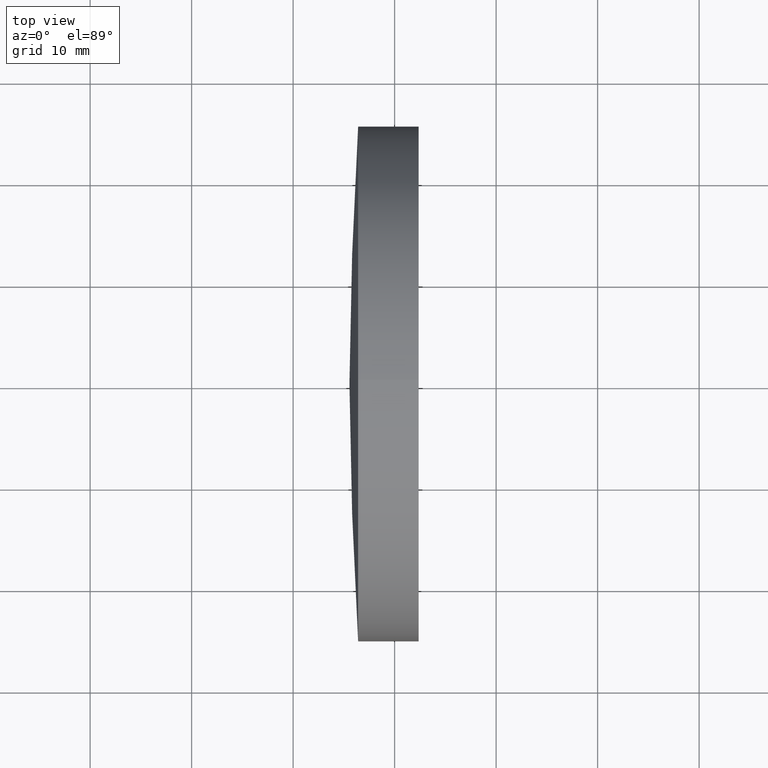
[diagram: clean part render]
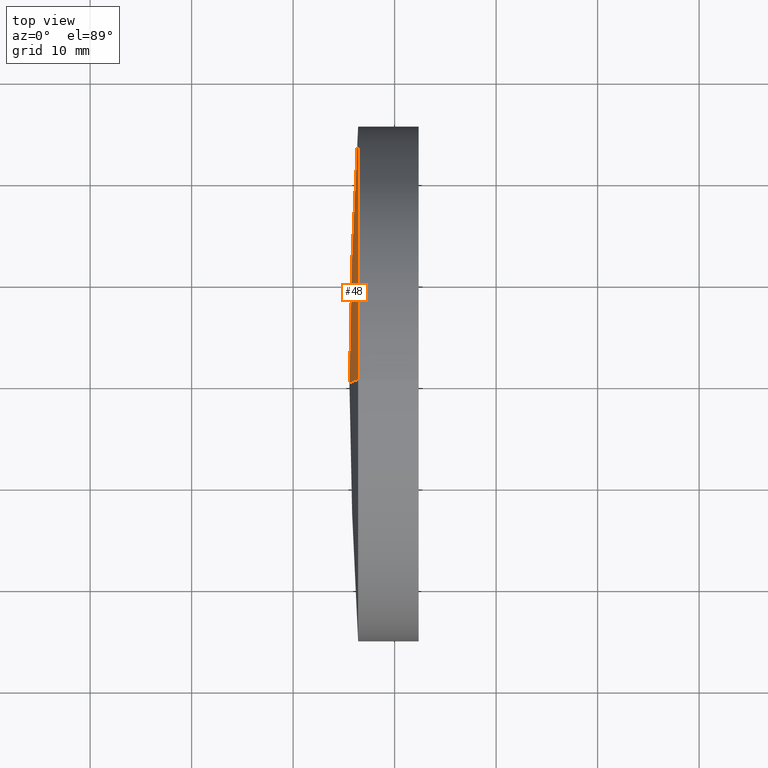
[diagram: same view with one face highlighted and labeled with its STEP entity id]
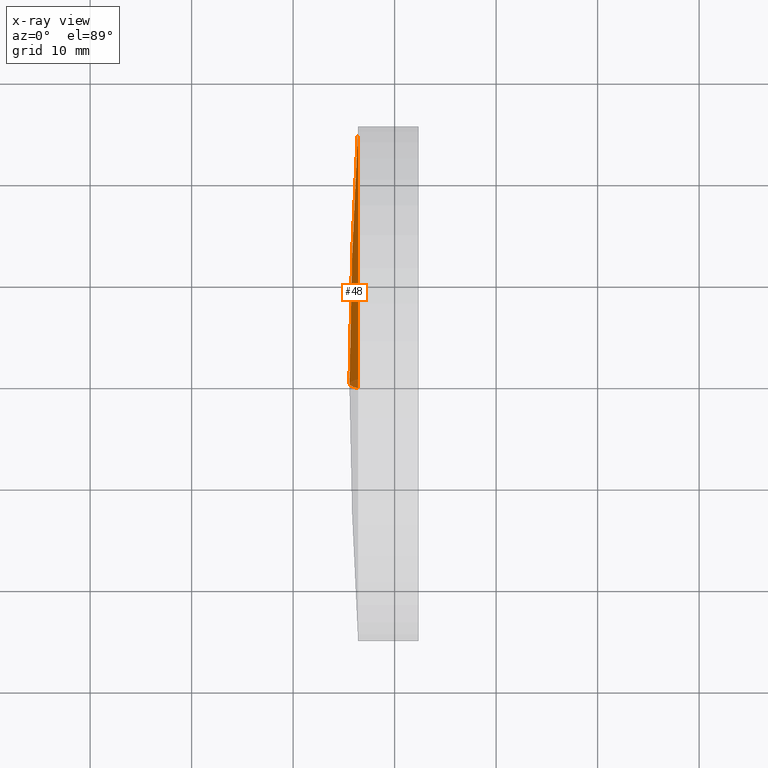
[diagram: x-ray of the same camera — body ghosted, the highlighted face saturated]
A machine part, top view. The second image highlights one B-rep face of the part: STEP entity #48.
The next image is the same camera in x-ray: the body ghosted, the highlighted face saturated — about 4% of this face is hidden behind the body in this view.
In plain terms, the highlighted spherical surface has radius 376.8 mm.
Its self-contained STEP definition (entity closure, byte-faithful):
#16 = AXIS2_PLACEMENT_3D ( 'NONE', #240, #159, #233 ) ;
#18 = FACE_OUTER_BOUND ( 'NONE', #207, .T. ) ;
#33 = CIRCLE ( 'NONE', #201, 376.8000000000000100 ) ;
#48 = ADVANCED_FACE ( 'NONE', ( #18 ), #108, .T. ) ;
#62 = AXIS2_PLACEMENT_3D ( 'NONE', #188, #77, #303 ) ;
#77 = DIRECTION ( 'NONE',  ( 0.0000000000000000000, -1.000000000000000000, 0.0000000000000000000 ) ) ;
#84 = VERTEX_POINT ( 'NONE', #263 ) ;
#85 = DIRECTION ( 'NONE',  ( 0.0000000000000000000, 0.0000000000000000000, 1.000000000000000000 ) ) ;
#87 = AXIS2_PLACEMENT_3D ( 'NONE', #319, #322, #85 ) ;
#94 = CARTESIAN_POINT ( 'NONE',  ( -33.59384532777775700, 3.110602869834250000E-015, -25.39999999999978500 ) ) ;
#97 = CARTESIAN_POINT ( 'NONE',  ( 342.3490758717043700, 0.0000000000000000000, -7.663786165743663600E-015 ) ) ;
#108 = SPHERICAL_SURFACE ( 'NONE', #16, 376.8000000000000100 ) ;
#118 = CARTESIAN_POINT ( 'NONE',  ( -33.59384532777775700, 0.0000000000000000000, 25.39999999999977800 ) ) ;
#158 = ORIENTED_EDGE ( 'NONE', *, *, #247, .F. ) ;
#159 = DIRECTION ( 'NONE',  ( 0.0000000000000000000, 1.000000000000000000, 0.0000000000000000000 ) ) ;
#173 = CIRCLE ( 'NONE', #62, 376.8000000000000100 ) ;
#174 = ORIENTED_EDGE ( 'NONE', *, *, #338, .T. ) ;
#188 = CARTESIAN_POINT ( 'NONE',  ( 342.3490758717043700, 0.0000000000000000000, -7.663786165743663600E-015 ) ) ;
#201 = AXIS2_PLACEMENT_3D ( 'NONE', #97, #259, #272 ) ;
#207 = EDGE_LOOP ( 'NONE', ( #174, #223, #158 ) ) ;
#223 = ORIENTED_EDGE ( 'NONE', *, *, #298, .T. ) ;
#227 = VERTEX_POINT ( 'NONE', #118 ) ;
#233 = DIRECTION ( 'NONE',  ( 0.0000000000000000000, 0.0000000000000000000, 1.000000000000000000 ) ) ;
#240 = CARTESIAN_POINT ( 'NONE',  ( 342.3490758717043700, 0.0000000000000000000, -7.663786165743663600E-015 ) ) ;
#247 = EDGE_CURVE ( 'NONE', #227, #84, #173, .T. ) ;
#259 = DIRECTION ( 'NONE',  ( -0.0000000000000000000, 1.000000000000000000, 1.224646799147353200E-016 ) ) ;
#263 = CARTESIAN_POINT ( 'NONE',  ( -34.45092412829564700, 0.0000000000000000000, 1.540855953019247200E-014 ) ) ;
#272 = DIRECTION ( 'NONE',  ( 0.0000000000000000000, -1.224646799147353200E-016, 1.000000000000000000 ) ) ;
#286 = CIRCLE ( 'NONE', #87, 25.39999999999999100 ) ;
#298 = EDGE_CURVE ( 'NONE', #301, #84, #33, .T. ) ;
#301 = VERTEX_POINT ( 'NONE', #94 ) ;
#303 = DIRECTION ( 'NONE',  ( 0.0000000000000000000, 0.0000000000000000000, -1.000000000000000000 ) ) ;
#319 = CARTESIAN_POINT ( 'NONE',  ( -33.59384532777775700, 0.0000000000000000000, 0.0000000000000000000 ) ) ;
#322 = DIRECTION ( 'NONE',  ( -1.000000000000000000, -0.0000000000000000000, -0.0000000000000000000 ) ) ;
#338 = EDGE_CURVE ( 'NONE', #227, #301, #286, .T. ) ;